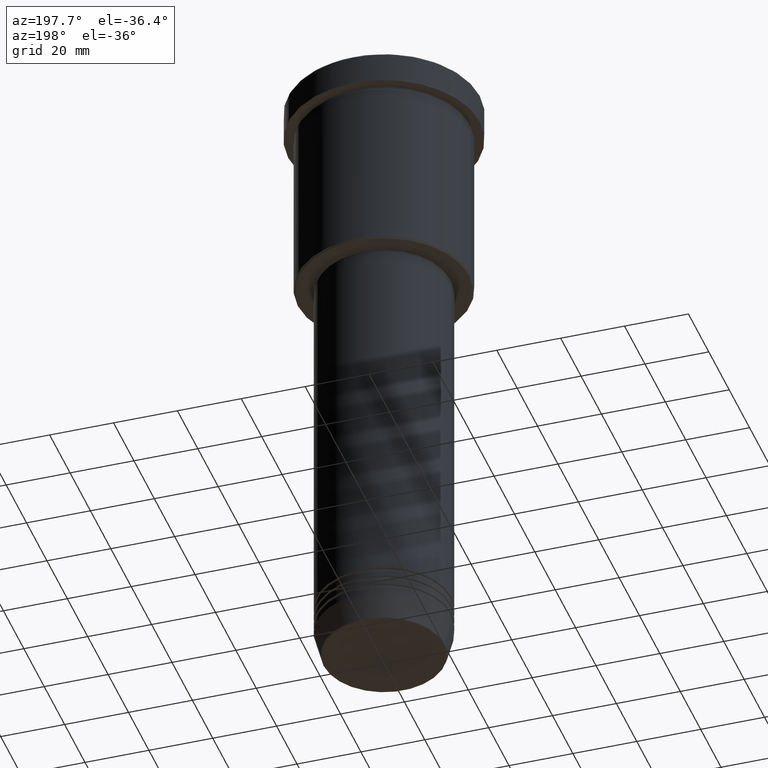
[diagram: clean part render]
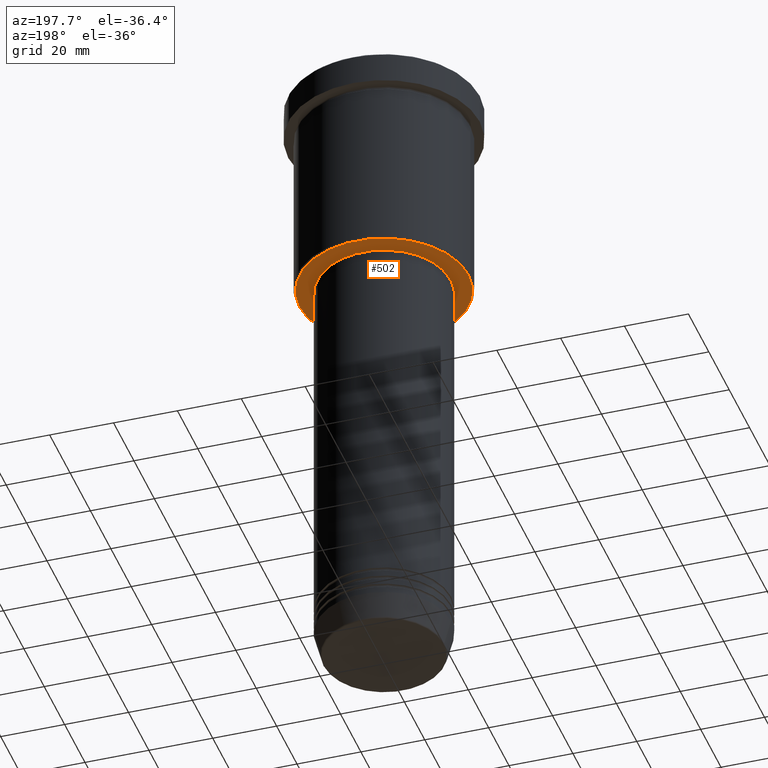
[diagram: same view with one face highlighted and labeled with its STEP entity id]
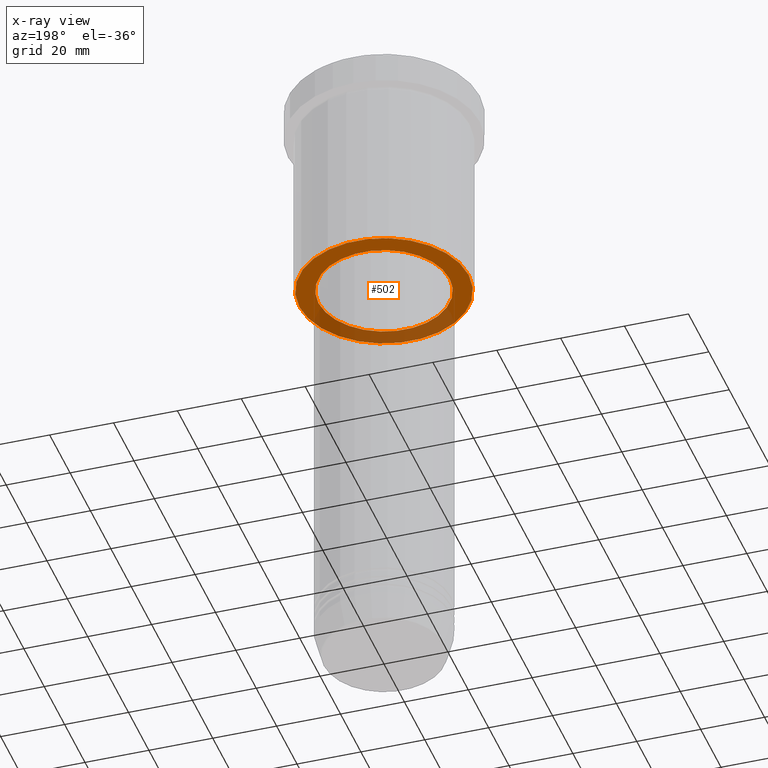
[diagram: x-ray of the same camera — body ghosted, the highlighted face saturated]
A machine part, auxiliary view. The second image highlights one B-rep face of the part: STEP entity #502.
The next image is the same camera in x-ray: the body ghosted, the highlighted face saturated — about 33% of this face is hidden behind the body in this view.
In plain terms, the highlighted planar face has unit normal (0, 0, -1).
Its self-contained STEP definition (entity closure, byte-faithful):
#32 = ORIENTED_EDGE ( 'NONE', *, *, #863, .T. ) ;
#97 = CIRCLE ( 'NONE', #247, 20.50000000000000000 ) ;
#108 = CARTESIAN_POINT ( 'NONE',  ( 0.000000000000000000, 0.000000000000000000, -66.00000000000001421 ) ) ;
#122 = EDGE_CURVE ( 'NONE', #779, #499, #447, .T. ) ;
#136 = AXIS2_PLACEMENT_3D ( 'NONE', #307, #372, #745 ) ;
#155 = CIRCLE ( 'NONE', #656, 26.49999999999999645 ) ;
#180 = DIRECTION ( 'NONE',  ( -0.000000000000000000, -0.000000000000000000, 1.000000000000000000 ) ) ;
#235 = DIRECTION ( 'NONE',  ( 1.000000000000000000, 0.000000000000000000, 0.000000000000000000 ) ) ;
#247 = AXIS2_PLACEMENT_3D ( 'NONE', #723, #180, #235 ) ;
#260 = DIRECTION ( 'NONE',  ( -1.000000000000000000, 0.000000000000000000, 0.000000000000000000 ) ) ;
#286 = ORIENTED_EDGE ( 'NONE', *, *, #988, .T. ) ;
#307 = CARTESIAN_POINT ( 'NONE',  ( 0.000000000000000000, 0.000000000000000000, -66.00000000000001421 ) ) ;
#315 = PLANE ( 'NONE',  #618 ) ;
#372 = DIRECTION ( 'NONE',  ( -0.000000000000000000, -0.000000000000000000, 1.000000000000000000 ) ) ;
#378 = EDGE_LOOP ( 'NONE', ( #286, #672 ) ) ;
#447 = CIRCLE ( 'NONE', #136, 20.50000000000000000 ) ;
#499 = VERTEX_POINT ( 'NONE', #703 ) ;
#502 = ADVANCED_FACE ( 'NONE', ( #1175, #1060 ), #315, .T. ) ;
#505 = DIRECTION ( 'NONE',  ( 0.000000000000000000, 0.000000000000000000, -1.000000000000000000 ) ) ;
#568 = DIRECTION ( 'NONE',  ( -1.000000000000000000, 0.000000000000000000, 0.000000000000000000 ) ) ;
#618 = AXIS2_PLACEMENT_3D ( 'NONE', #960, #505, #766 ) ;
#656 = AXIS2_PLACEMENT_3D ( 'NONE', #905, #898, #260 ) ;
#672 = ORIENTED_EDGE ( 'NONE', *, *, #122, .T. ) ;
#703 = CARTESIAN_POINT ( 'NONE',  ( 20.50000000000000000, 0.000000000000000000, -66.00000000000001421 ) ) ;
#707 = CARTESIAN_POINT ( 'NONE',  ( 26.49999999999999645, 0.000000000000000000, -66.00000000000001421 ) ) ;
#717 = VERTEX_POINT ( 'NONE', #747 ) ;
#723 = CARTESIAN_POINT ( 'NONE',  ( 0.000000000000000000, 0.000000000000000000, -66.00000000000001421 ) ) ;
#745 = DIRECTION ( 'NONE',  ( 1.000000000000000000, 0.000000000000000000, 0.000000000000000000 ) ) ;
#747 = CARTESIAN_POINT ( 'NONE',  ( -26.49999999999999645, 3.275930187719169552E-15, -66.00000000000001421 ) ) ;
#766 = DIRECTION ( 'NONE',  ( -1.000000000000000000, 0.000000000000000000, -0.000000000000000000 ) ) ;
#779 = VERTEX_POINT ( 'NONE', #938 ) ;
#805 = EDGE_CURVE ( 'NONE', #717, #934, #1033, .T. ) ;
#863 = EDGE_CURVE ( 'NONE', #934, #717, #155, .T. ) ;
#890 = AXIS2_PLACEMENT_3D ( 'NONE', #108, #1041, #568 ) ;
#898 = DIRECTION ( 'NONE',  ( 0.000000000000000000, 0.000000000000000000, -1.000000000000000000 ) ) ;
#905 = CARTESIAN_POINT ( 'NONE',  ( 0.000000000000000000, 0.000000000000000000, -66.00000000000001421 ) ) ;
#934 = VERTEX_POINT ( 'NONE', #707 ) ;
#938 = CARTESIAN_POINT ( 'NONE',  ( -20.50000000000000000, 2.510525938252074481E-15, -66.00000000000001421 ) ) ;
#948 = ORIENTED_EDGE ( 'NONE', *, *, #805, .T. ) ;
#960 = CARTESIAN_POINT ( 'NONE',  ( 0.000000000000000000, 27.00000000000000355, -66.00000000000001421 ) ) ;
#988 = EDGE_CURVE ( 'NONE', #499, #779, #97, .T. ) ;
#1005 = EDGE_LOOP ( 'NONE', ( #32, #948 ) ) ;
#1033 = CIRCLE ( 'NONE', #890, 26.49999999999999645 ) ;
#1041 = DIRECTION ( 'NONE',  ( 0.000000000000000000, 0.000000000000000000, -1.000000000000000000 ) ) ;
#1060 = FACE_BOUND ( 'NONE', #378, .T. ) ;
#1175 = FACE_OUTER_BOUND ( 'NONE', #1005, .T. ) ;